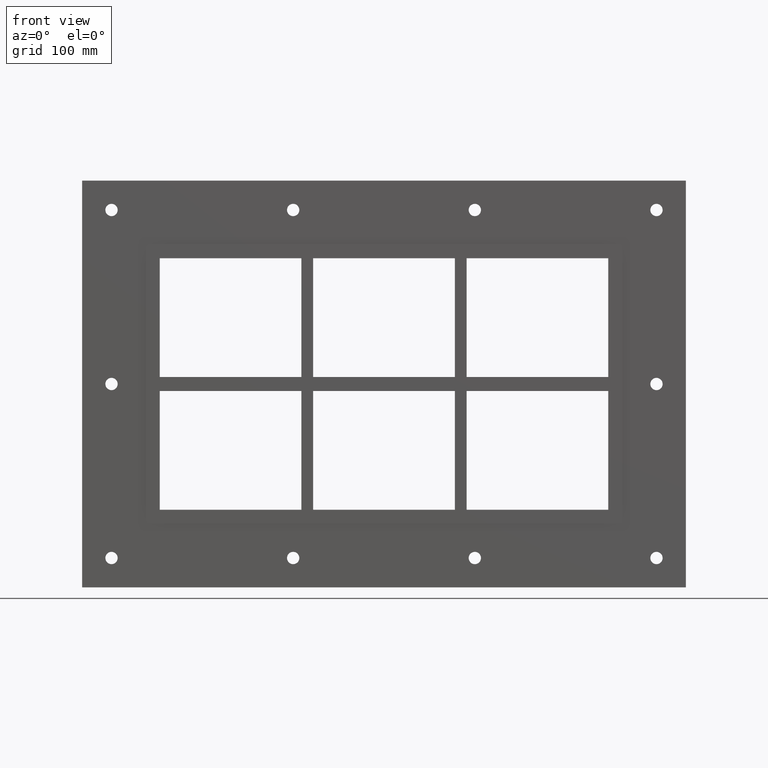
[diagram: clean part render]
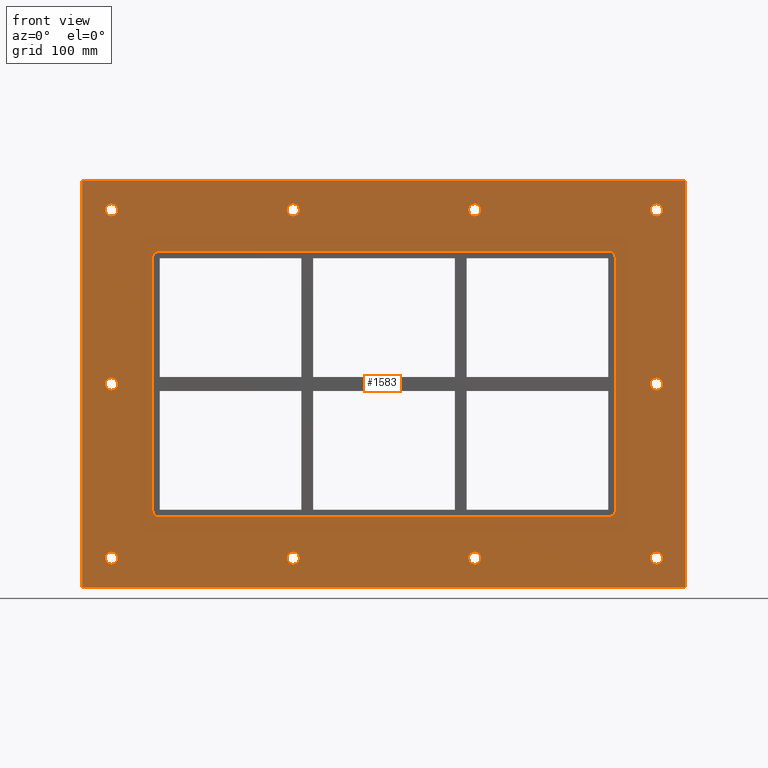
[diagram: same view with one face highlighted and labeled with its STEP entity id]
A machine part, front view. The second image highlights one B-rep face of the part: STEP entity #1583.
In plain terms, the highlighted planar face has unit normal (0, 1, 0).
Its self-contained STEP definition (entity closure, byte-faithful):
#84=CARTESIAN_POINT('',(-226.5000000000002,0.0,-148.00000000000011));
#85=VERTEX_POINT('',#84);
#86=CARTESIAN_POINT('',(-231.75000000000017,0.0,-148.00000000000011));
#87=DIRECTION('',(0.0,1.0,0.0));
#88=DIRECTION('',(1.0,0.0,0.0));
#89=AXIS2_PLACEMENT_3D('',#86,#87,#88);
#90=CIRCLE('',#89,5.25);
#91=EDGE_CURVE('',#85,#85,#90,.T.);
#112=CARTESIAN_POINT('',(236.99999999999983,0.0,-1.065814E-013));
#113=VERTEX_POINT('',#112);
#114=CARTESIAN_POINT('',(231.74999999999983,0.0,-1.065814E-013));
#115=DIRECTION('',(0.0,1.0,0.0));
#116=DIRECTION('',(1.0,0.0,0.0));
#117=AXIS2_PLACEMENT_3D('',#114,#115,#116);
#118=CIRCLE('',#117,5.25);
#119=EDGE_CURVE('',#113,#113,#118,.T.);
#140=CARTESIAN_POINT('',(-226.5000000000002,0.0,-1.065814E-013));
#141=VERTEX_POINT('',#140);
#142=CARTESIAN_POINT('',(-231.75000000000017,0.0,-1.065814E-013));
#143=DIRECTION('',(0.0,1.0,0.0));
#144=DIRECTION('',(1.0,0.0,0.0));
#145=AXIS2_PLACEMENT_3D('',#142,#143,#144);
#146=CIRCLE('',#145,5.25);
#147=EDGE_CURVE('',#141,#141,#146,.T.);
#168=CARTESIAN_POINT('',(-72.000000000000199,0.0,147.99999999999989));
#169=VERTEX_POINT('',#168);
#170=CARTESIAN_POINT('',(-77.250000000000199,0.0,147.99999999999989));
#171=DIRECTION('',(0.0,1.0,0.0));
#172=DIRECTION('',(1.0,0.0,0.0));
#173=AXIS2_PLACEMENT_3D('',#170,#171,#172);
#174=CIRCLE('',#173,5.25);
#175=EDGE_CURVE('',#169,#169,#174,.T.);
#196=CARTESIAN_POINT('',(-72.000000000000199,0.0,-148.00000000000009));
#197=VERTEX_POINT('',#196);
#198=CARTESIAN_POINT('',(-77.250000000000199,0.0,-148.00000000000009));
#199=DIRECTION('',(0.0,1.0,0.0));
#200=DIRECTION('',(1.0,0.0,0.0));
#201=AXIS2_PLACEMENT_3D('',#198,#199,#200);
#202=CIRCLE('',#201,5.25);
#203=EDGE_CURVE('',#197,#197,#202,.T.);
#224=CARTESIAN_POINT('',(82.499999999999801,0.0,147.99999999999989));
#225=VERTEX_POINT('',#224);
#226=CARTESIAN_POINT('',(77.249999999999815,0.0,147.99999999999989));
#227=DIRECTION('',(0.0,1.0,0.0));
#228=DIRECTION('',(1.0,0.0,0.0));
#229=AXIS2_PLACEMENT_3D('',#226,#227,#228);
#230=CIRCLE('',#229,5.25);
#231=EDGE_CURVE('',#225,#225,#230,.T.);
#252=CARTESIAN_POINT('',(82.499999999999801,0.0,-148.00000000000009));
#253=VERTEX_POINT('',#252);
#254=CARTESIAN_POINT('',(77.249999999999815,0.0,-148.00000000000009));
#255=DIRECTION('',(0.0,1.0,0.0));
#256=DIRECTION('',(1.0,0.0,0.0));
#257=AXIS2_PLACEMENT_3D('',#254,#255,#256);
#258=CIRCLE('',#257,5.25);
#259=EDGE_CURVE('',#253,#253,#258,.T.);
#280=CARTESIAN_POINT('',(236.99999999999983,0.0,-148.00000000000009));
#281=VERTEX_POINT('',#280);
#282=CARTESIAN_POINT('',(231.74999999999983,0.0,-148.00000000000009));
#283=DIRECTION('',(0.0,1.0,0.0));
#284=DIRECTION('',(1.0,0.0,0.0));
#285=AXIS2_PLACEMENT_3D('',#282,#283,#284);
#286=CIRCLE('',#285,5.25);
#287=EDGE_CURVE('',#281,#281,#286,.T.);
#308=CARTESIAN_POINT('',(-226.5000000000002,0.0,147.99999999999989));
#309=VERTEX_POINT('',#308);
#310=CARTESIAN_POINT('',(-231.75000000000017,0.0,147.99999999999989));
#311=DIRECTION('',(0.0,1.0,0.0));
#312=DIRECTION('',(1.0,0.0,0.0));
#313=AXIS2_PLACEMENT_3D('',#310,#311,#312);
#314=CIRCLE('',#313,5.25);
#315=EDGE_CURVE('',#309,#309,#314,.T.);
#336=CARTESIAN_POINT('',(236.99999999999983,0.0,147.99999999999989));
#337=VERTEX_POINT('',#336);
#338=CARTESIAN_POINT('',(231.74999999999983,0.0,147.99999999999989));
#339=DIRECTION('',(0.0,1.0,0.0));
#340=DIRECTION('',(1.0,0.0,0.0));
#341=AXIS2_PLACEMENT_3D('',#338,#339,#340);
#342=CIRCLE('',#341,5.25);
#343=EDGE_CURVE('',#337,#337,#342,.T.);
#1444=CARTESIAN_POINT('',(-1.984063E-014,0.0,-1.707121E-014));
#1445=DIRECTION('',(0.0,1.0,0.0));
#1446=DIRECTION('',(0.0,0.0,1.0));
#1447=AXIS2_PLACEMENT_3D('',#1444,#1445,#1446);
#1448=PLANE('',#1447);
#1449=CARTESIAN_POINT('',(-256.75000000000006,0.0,173.00000000000006));
#1450=VERTEX_POINT('',#1449);
#1451=CARTESIAN_POINT('',(256.75,0.0,173.00000000000006));
#1452=VERTEX_POINT('',#1451);
#1453=CARTESIAN_POINT('',(-256.75000000000006,0.0,173.00000000000006));
#1454=DIRECTION('',(1.0,0.0,0.0));
#1455=VECTOR('',#1454,513.50000000000011);
#1456=LINE('',#1453,#1455);
#1457=EDGE_CURVE('',#1450,#1452,#1456,.T.);
#1458=ORIENTED_EDGE('',*,*,#1457,.F.);
#1459=CARTESIAN_POINT('',(-256.75000000000006,0.0,-173.00000000000009));
#1460=VERTEX_POINT('',#1459);
#1461=CARTESIAN_POINT('',(-256.75000000000006,0.0,-173.00000000000009));
#1462=DIRECTION('',(0.0,0.0,1.0));
#1463=VECTOR('',#1462,346.00000000000011);
#1464=LINE('',#1461,#1463);
#1465=EDGE_CURVE('',#1460,#1450,#1464,.T.);
#1466=ORIENTED_EDGE('',*,*,#1465,.F.);
#1467=CARTESIAN_POINT('',(256.75,0.0,-173.00000000000009));
#1468=VERTEX_POINT('',#1467);
#1469=CARTESIAN_POINT('',(256.75,0.0,-173.00000000000009));
#1470=DIRECTION('',(-1.0,0.0,0.0));
#1471=VECTOR('',#1470,513.50000000000011);
#1472=LINE('',#1469,#1471);
#1473=EDGE_CURVE('',#1468,#1460,#1472,.T.);
#1474=ORIENTED_EDGE('',*,*,#1473,.F.);
#1475=CARTESIAN_POINT('',(256.75,0.0,173.00000000000006));
#1476=DIRECTION('',(0.0,0.0,-1.0));
#1477=VECTOR('',#1476,346.00000000000011);
#1478=LINE('',#1475,#1477);
#1479=EDGE_CURVE('',#1452,#1468,#1478,.T.);
#1480=ORIENTED_EDGE('',*,*,#1479,.F.);
#1481=EDGE_LOOP('',(#1458,#1466,#1474,#1480));
#1482=FACE_OUTER_BOUND('',#1481,.T.);
#1483=ORIENTED_EDGE('',*,*,#91,.T.);
#1484=EDGE_LOOP('',(#1483));
#1485=FACE_BOUND('',#1484,.T.);
#1486=ORIENTED_EDGE('',*,*,#119,.T.);
#1487=EDGE_LOOP('',(#1486));
#1488=FACE_BOUND('',#1487,.T.);
#1489=ORIENTED_EDGE('',*,*,#147,.T.);
#1490=EDGE_LOOP('',(#1489));
#1491=FACE_BOUND('',#1490,.T.);
#1492=ORIENTED_EDGE('',*,*,#175,.T.);
#1493=EDGE_LOOP('',(#1492));
#1494=FACE_BOUND('',#1493,.T.);
#1495=ORIENTED_EDGE('',*,*,#203,.T.);
#1496=EDGE_LOOP('',(#1495));
#1497=FACE_BOUND('',#1496,.T.);
#1498=ORIENTED_EDGE('',*,*,#231,.T.);
#1499=EDGE_LOOP('',(#1498));
#1500=FACE_BOUND('',#1499,.T.);
#1501=ORIENTED_EDGE('',*,*,#259,.T.);
#1502=EDGE_LOOP('',(#1501));
#1503=FACE_BOUND('',#1502,.T.);
#1504=ORIENTED_EDGE('',*,*,#287,.T.);
#1505=EDGE_LOOP('',(#1504));
#1506=FACE_BOUND('',#1505,.T.);
#1507=ORIENTED_EDGE('',*,*,#315,.T.);
#1508=EDGE_LOOP('',(#1507));
#1509=FACE_BOUND('',#1508,.T.);
#1510=ORIENTED_EDGE('',*,*,#343,.T.);
#1511=EDGE_LOOP('',(#1510));
#1512=FACE_BOUND('',#1511,.T.);
#1513=CARTESIAN_POINT('',(-196.75000000000006,0.0,-107.00000000000003));
#1514=VERTEX_POINT('',#1513);
#1515=CARTESIAN_POINT('',(-190.75000000000003,0.0,-113.00000000000004));
#1516=VERTEX_POINT('',#1515);
#1517=CARTESIAN_POINT('',(-190.75000000000003,0.0,-107.00000000000003));
#1518=DIRECTION('',(0.0,-1.0,0.0));
#1519=DIRECTION('',(-0.707106781186548,0.0,-0.707106781186548));
#1520=AXIS2_PLACEMENT_3D('',#1517,#1518,#1519);
#1521=CIRCLE('',#1520,6.000000000000002);
#1522=EDGE_CURVE('',#1514,#1516,#1521,.T.);
#1523=ORIENTED_EDGE('',*,*,#1522,.F.);
#1524=CARTESIAN_POINT('',(-196.75000000000006,0.0,106.99999999999996));
#1525=VERTEX_POINT('',#1524);
#1526=CARTESIAN_POINT('',(-196.75000000000006,0.0,106.99999999999994));
#1527=DIRECTION('',(0.0,0.0,-1.0));
#1528=VECTOR('',#1527,213.99999999999997);
#1529=LINE('',#1526,#1528);
#1530=EDGE_CURVE('',#1525,#1514,#1529,.T.);
#1531=ORIENTED_EDGE('',*,*,#1530,.F.);
#1532=CARTESIAN_POINT('',(-190.75000000000003,0.0,112.99999999999997));
#1533=VERTEX_POINT('',#1532);
#1534=CARTESIAN_POINT('',(-190.75000000000003,0.0,106.99999999999996));
#1535=DIRECTION('',(0.0,-1.0,0.0));
#1536=DIRECTION('',(-0.707106781186548,0.0,0.707106781186548));
#1537=AXIS2_PLACEMENT_3D('',#1534,#1535,#1536);
#1538=CIRCLE('',#1537,6.000000000000002);
#1539=EDGE_CURVE('',#1533,#1525,#1538,.T.);
#1540=ORIENTED_EDGE('',*,*,#1539,.F.);
#1541=CARTESIAN_POINT('',(190.75000000000003,0.0,112.99999999999997));
#1542=VERTEX_POINT('',#1541);
#1543=CARTESIAN_POINT('',(190.75000000000006,0.0,112.99999999999997));
#1544=DIRECTION('',(-1.0,0.0,0.0));
#1545=VECTOR('',#1544,381.50000000000011);
#1546=LINE('',#1543,#1545);
#1547=EDGE_CURVE('',#1542,#1533,#1546,.T.);
#1548=ORIENTED_EDGE('',*,*,#1547,.F.);
#1549=CARTESIAN_POINT('',(196.75000000000006,0.0,106.99999999999997));
#1550=VERTEX_POINT('',#1549);
#1551=CARTESIAN_POINT('',(190.75000000000003,0.0,106.99999999999997));
#1552=DIRECTION('',(0.0,-1.0,0.0));
#1553=DIRECTION('',(0.70710678118655,0.0,0.707106781186545));
#1554=AXIS2_PLACEMENT_3D('',#1551,#1552,#1553);
#1555=CIRCLE('',#1554,6.000000000000001);
#1556=EDGE_CURVE('',#1550,#1542,#1555,.T.);
#1557=ORIENTED_EDGE('',*,*,#1556,.F.);
#1558=CARTESIAN_POINT('',(196.75000000000006,0.0,-107.00000000000003));
#1559=VERTEX_POINT('',#1558);
#1560=CARTESIAN_POINT('',(196.75000000000006,0.0,-107.00000000000003));
#1561=DIRECTION('',(0.0,0.0,1.0));
#1562=VECTOR('',#1561,214.0);
#1563=LINE('',#1560,#1562);
#1564=EDGE_CURVE('',#1559,#1550,#1563,.T.);
#1565=ORIENTED_EDGE('',*,*,#1564,.F.);
#1566=CARTESIAN_POINT('',(190.75000000000003,0.0,-113.00000000000004));
#1567=VERTEX_POINT('',#1566);
#1568=CARTESIAN_POINT('',(190.75000000000003,0.0,-107.00000000000003));
#1569=DIRECTION('',(0.0,-1.0,0.0));
#1570=DIRECTION('',(0.707106781186548,0.0,-0.707106781186548));
#1571=AXIS2_PLACEMENT_3D('',#1568,#1569,#1570);
#1572=CIRCLE('',#1571,6.000000000000002);
#1573=EDGE_CURVE('',#1567,#1559,#1572,.T.);
#1574=ORIENTED_EDGE('',*,*,#1573,.F.);
#1575=CARTESIAN_POINT('',(-190.75,0.0,-113.00000000000004));
#1576=DIRECTION('',(1.0,0.0,0.0));
#1577=VECTOR('',#1576,381.5);
#1578=LINE('',#1575,#1577);
#1579=EDGE_CURVE('',#1516,#1567,#1578,.T.);
#1580=ORIENTED_EDGE('',*,*,#1579,.F.);
#1581=EDGE_LOOP('',(#1523,#1531,#1540,#1548,#1557,#1565,#1574,#1580));
#1582=FACE_BOUND('',#1581,.T.);
#1583=ADVANCED_FACE('',(#1482,#1485,#1488,#1491,#1494,#1497,#1500,#1503,#1506,#1509,#1512,#1582),#1448,.F.);